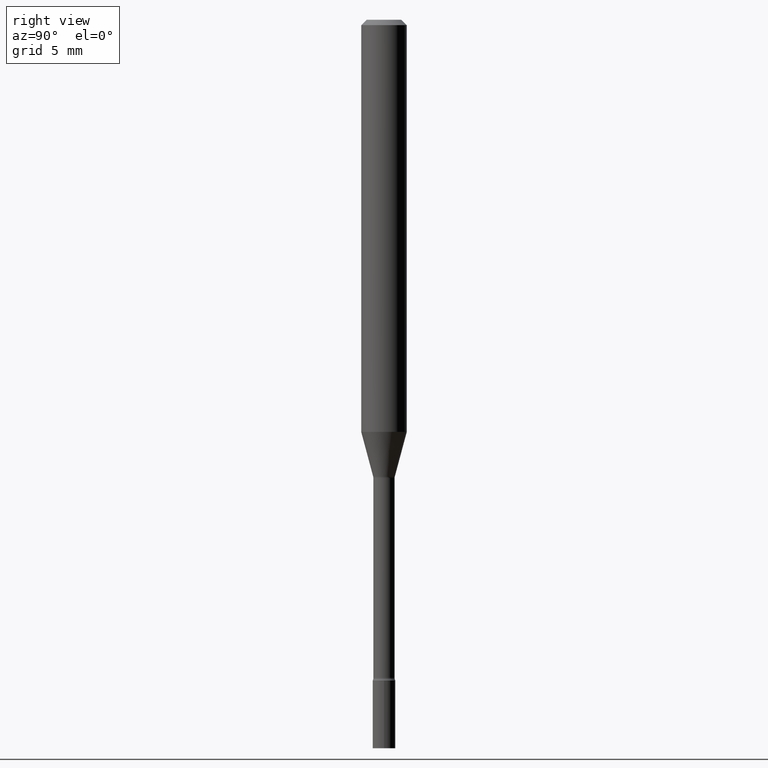
[diagram: clean part render]
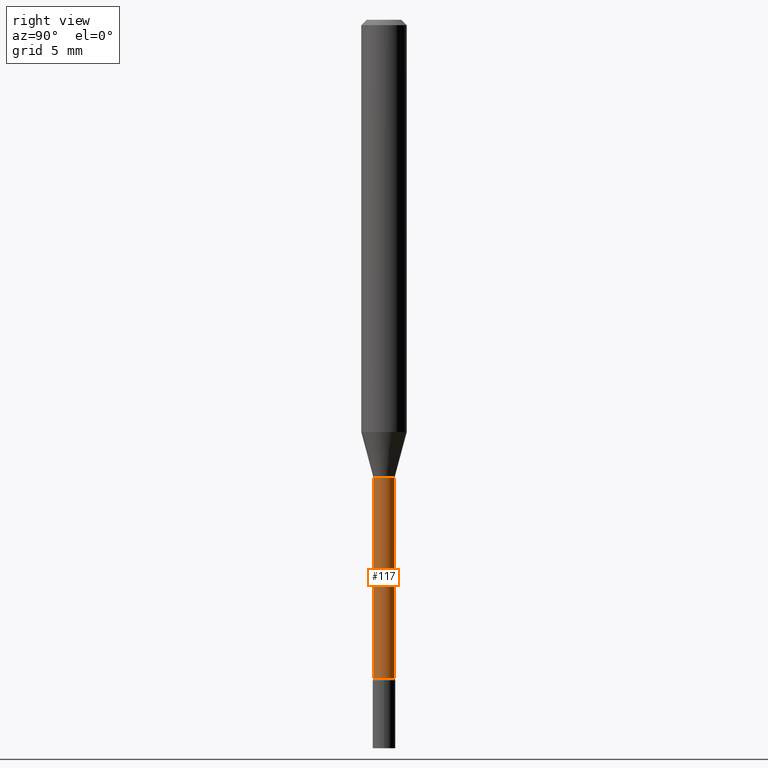
[diagram: same view with one face highlighted and labeled with its STEP entity id]
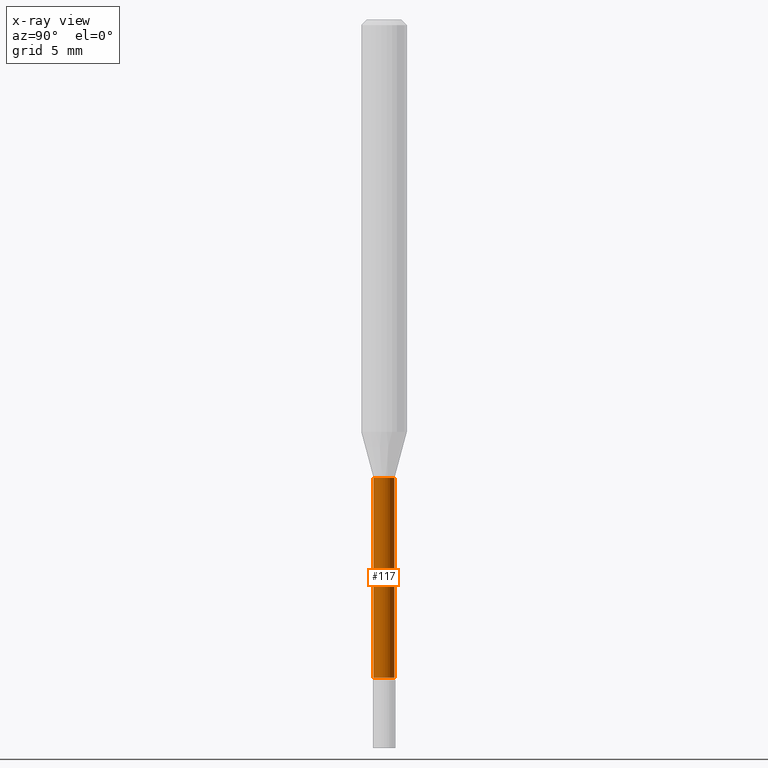
[diagram: x-ray of the same camera — body ghosted, the highlighted face saturated]
A machine part, right view. The second image highlights one B-rep face of the part: STEP entity #117.
The next image is the same camera in x-ray: the body ghosted, the highlighted face saturated — about 0% of this face is hidden behind the body in this view.
In plain terms, the highlighted cylindrical surface (edge-blend (fillet) strip) has radius 0.7404 mm, axis along (-0, 0, 1).
Its self-contained STEP definition (entity closure, byte-faithful):
#13 = AXIS2_PLACEMENT_3D ( 'NONE', #275, #439, #82 ) ;
#18 = DIRECTION ( 'NONE',  ( -6.982962677686266711E-15, -1.000000000000000000, 0.000000000000000000 ) ) ;
#41 = CARTESIAN_POINT ( 'NONE',  ( -2.035533620545107573E-16, -0.02915000000000635139, -1.806783525791634704 ) ) ;
#53 = ORIENTED_EDGE ( 'NONE', *, *, #167, .F. ) ;
#59 = EDGE_CURVE ( 'NONE', #296, #287, #126, .T. ) ;
#82 = DIRECTION ( 'NONE',  ( -6.982962677686266711E-15, -1.000000000000000000, 0.000000000000000000 ) ) ;
#90 = AXIS2_PLACEMENT_3D ( 'NONE', #215, #366, #18 ) ;
#110 = ORIENTED_EDGE ( 'NONE', *, *, #59, .F. ) ;
#117 = ADVANCED_FACE ( 'NONE', ( #234 ), #237, .T. ) ;
#126 = CIRCLE ( 'NONE', #13, 0.02914999999999998842 ) ;
#127 = CARTESIAN_POINT ( 'NONE',  ( -2.035533620545238229E-16, -0.02915000000000438074, -1.257974787463810973 ) ) ;
#139 = DIRECTION ( 'NONE',  ( -6.982962677686265922E-15, -1.000000000000000000, 3.491481724708021844E-15 ) ) ;
#150 = LINE ( 'NONE', #295, #357 ) ;
#167 = EDGE_CURVE ( 'NONE', #507, #296, #150, .T. ) ;
#203 = CARTESIAN_POINT ( 'NONE',  ( 0.000000000000000000, 0.000000000000000000, 0.000000000000000000 ) ) ;
#204 = DIRECTION ( 'NONE',  ( -2.445468536737133447E-29, 3.491481724708022239E-15, 1.000000000000000000 ) ) ;
#215 = CARTESIAN_POINT ( 'NONE',  ( 4.418432265018427708E-29, -6.308351660805017310E-15, -1.806783525791634704 ) ) ;
#234 = FACE_OUTER_BOUND ( 'NONE', #282, .T. ) ;
#237 = CYLINDRICAL_SURFACE ( 'NONE', #323, 0.02915000000000001618 ) ;
#275 = CARTESIAN_POINT ( 'NONE',  ( 3.076337762751332275E-29, -4.392195980573354156E-15, -1.257974787463810973 ) ) ;
#277 = CARTESIAN_POINT ( 'NONE',  ( 2.136957277798946103E-16, 0.02914999999999373301, -1.806783525791634704 ) ) ;
#282 = EDGE_LOOP ( 'NONE', ( #413, #452, #110, #53 ) ) ;
#287 = VERTEX_POINT ( 'NONE', #496 ) ;
#295 = CARTESIAN_POINT ( 'NONE',  ( -2.035533620545547610E-16, -0.02915000000000001618, 1.017766922752388879E-16 ) ) ;
#296 = VERTEX_POINT ( 'NONE', #127 ) ;
#308 = CIRCLE ( 'NONE', #90, 0.02915000000000004046 ) ;
#323 = AXIS2_PLACEMENT_3D ( 'NONE', #203, #493, #139 ) ;
#357 = VECTOR ( 'NONE', #421, 39.37007874015748143 ) ;
#366 = DIRECTION ( 'NONE',  ( -2.445468536737133447E-29, 3.491481724708021844E-15, 1.000000000000000000 ) ) ;
#394 = CARTESIAN_POINT ( 'NONE',  ( 2.071232074740692945E-16, 0.02915000000000001618, -1.017766922752388879E-16 ) ) ;
#395 = EDGE_CURVE ( 'NONE', #419, #287, #450, .T. ) ;
#413 = ORIENTED_EDGE ( 'NONE', *, *, #474, .T. ) ;
#419 = VERTEX_POINT ( 'NONE', #277 ) ;
#421 = DIRECTION ( 'NONE',  ( -2.445468536737133447E-29, 3.491481724708022239E-15, 1.000000000000000000 ) ) ;
#428 = VECTOR ( 'NONE', #204, 39.37007874015748143 ) ;
#439 = DIRECTION ( 'NONE',  ( -2.445468536737133447E-29, 3.491481724708021844E-15, 1.000000000000000000 ) ) ;
#450 = LINE ( 'NONE', #394, #428 ) ;
#452 = ORIENTED_EDGE ( 'NONE', *, *, #395, .T. ) ;
#474 = EDGE_CURVE ( 'NONE', #507, #419, #308, .T. ) ;
#493 = DIRECTION ( 'NONE',  ( -2.445468536737133447E-29, 3.491481724708021844E-15, 1.000000000000000000 ) ) ;
#496 = CARTESIAN_POINT ( 'NONE',  ( 2.071232074741134460E-16, 0.02914999999999559610, -1.257974787463810973 ) ) ;
#507 = VERTEX_POINT ( 'NONE', #41 ) ;